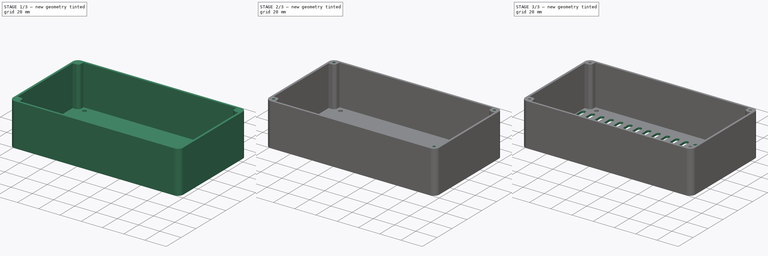
[diagram: build sequence overview — one tinted view per stage of 3, left to right]
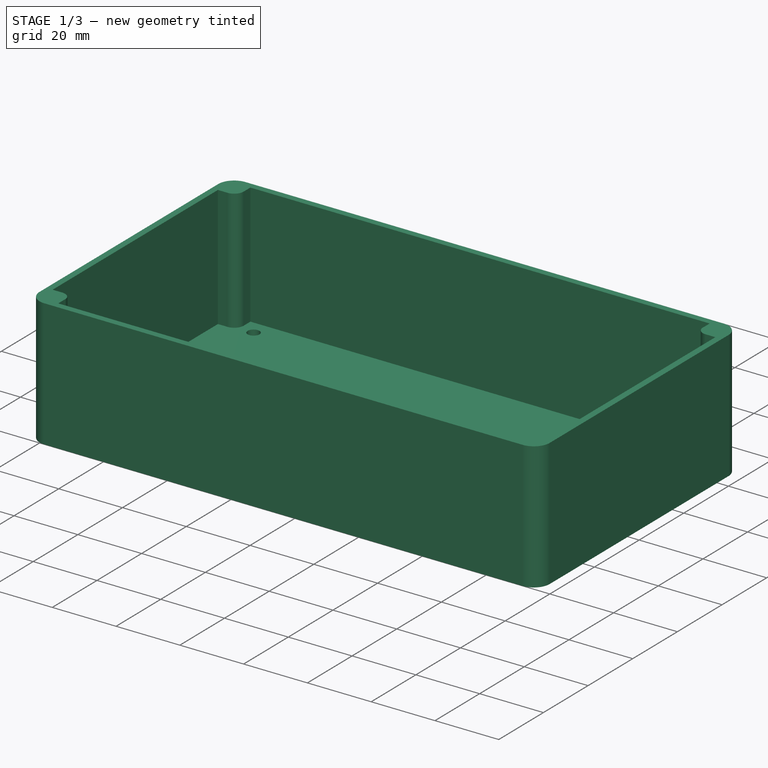
[diagram: stage 1 of 3 — iso view after this stage's code; geometry added in this stage tinted green]
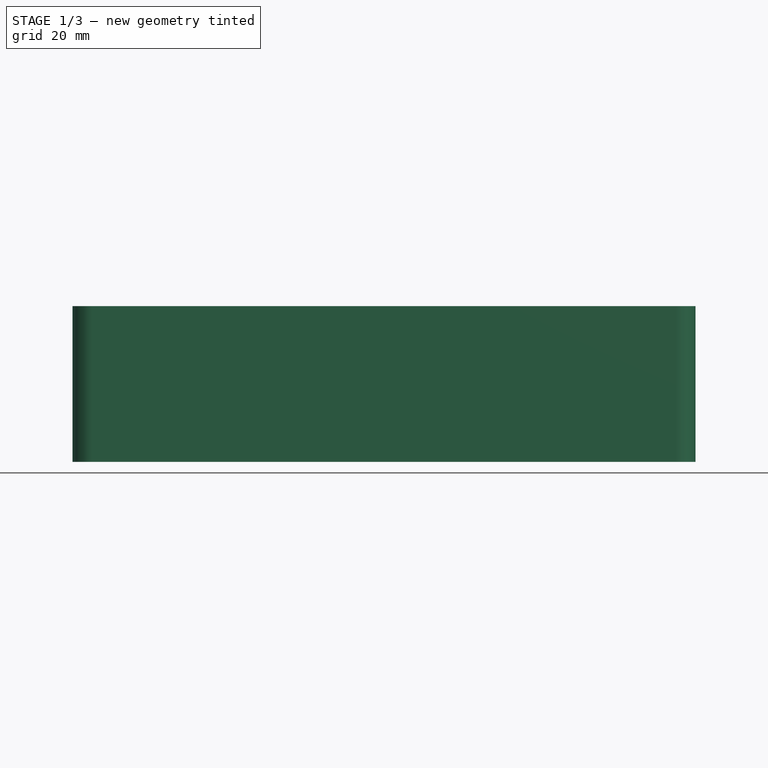
[diagram: stage 1 of 3 — front view after this stage's code; geometry added in this stage tinted green]
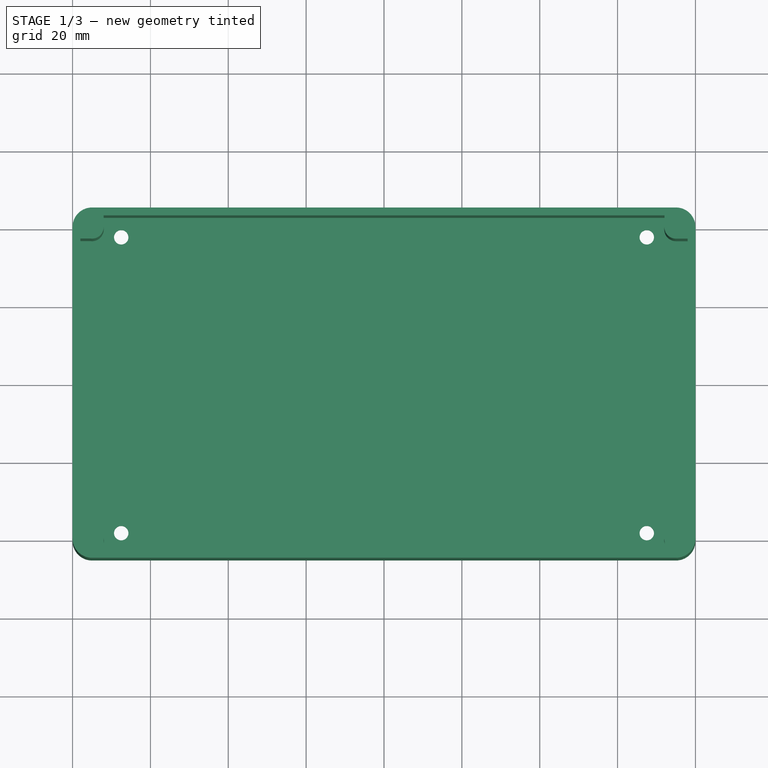
[diagram: stage 1 of 3 — top view after this stage's code; geometry added in this stage tinted green]
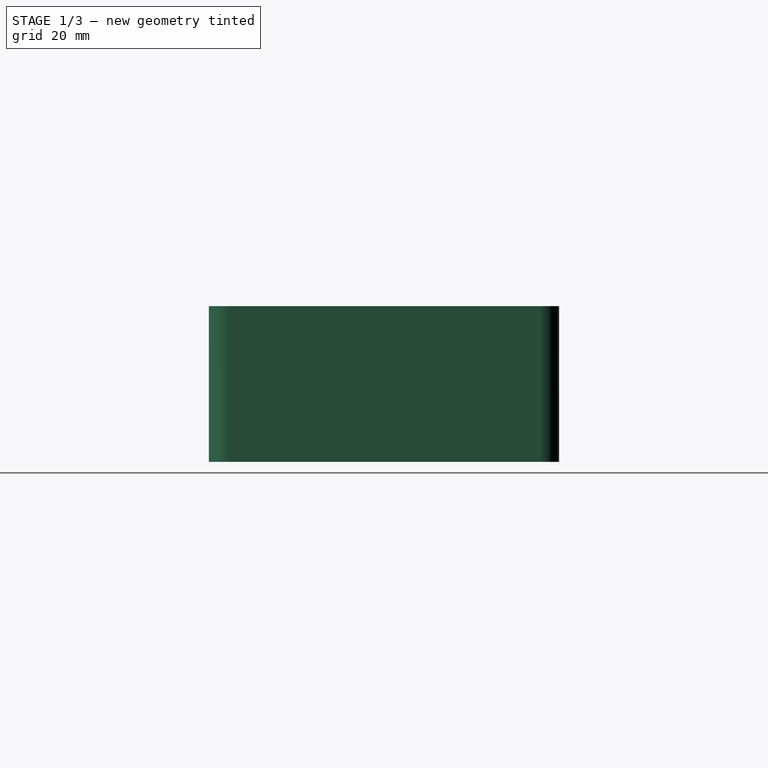
[diagram: stage 1 of 3 — right view after this stage's code; geometry added in this stage tinted green]
FCSTD DOCUMENT  (FreeCAD 0.17R13519 (Git))
Label: Corelia_0_electronics_case
License: All rights reserved
LicenseURL: http://en.wikipedia.org/wiki/All_rights_reserved
objects: Sketcher::SketchObject×4, PartDesign::Pocket×3, PartDesign::Pad×1, PartDesign::LinearPattern×1, PartDesign::Body×1
note: 14 computed .brp shape members not serialized (recipe doc carries the construction recipe); baked Part::Feature solids carry a one-line shape summary decoded from their .brp

FEATURE [Sketcher::SketchObject] Sketch
  MapMode = 5
  Support = -> [XY_Plane]
  sketch-geometry (16):
    g0: LineSegment StartX=-75 StartY=-45 StartZ=0 EndX=75 EndY=-45 EndZ=0
    g1: LineSegment StartX=80 StartY=-40 StartZ=0 EndX=80 EndY=40 EndZ=0
    g2: LineSegment StartX=75 StartY=45 StartZ=0 EndX=-75 EndY=45 EndZ=0
    g3: LineSegment StartX=-80 StartY=40 StartZ=0 EndX=-80 EndY=-40 EndZ=0
    g4: ArcOfCircle CenterX=-75 CenterY=40 CenterZ=0 NormalX=0 NormalY=0 NormalZ=1 AngleXU=0 Radius=5 StartAngle=1.5708 EndAngle=3.14159
    g5: ArcOfCircle CenterX=-75 CenterY=-40 CenterZ=0 NormalX=0 NormalY=0 NormalZ=1 AngleXU=0 Radius=5 StartAngle=3.14159 EndAngle=4.71239
    g6: ArcOfCircle CenterX=75 CenterY=-40 CenterZ=0 NormalX=0 NormalY=0 NormalZ=1 AngleXU=0 Radius=5 StartAngle=4.71239 EndAngle=6.28319
    g7: ArcOfCircle CenterX=75 CenterY=40 CenterZ=0 NormalX=0 NormalY=0 NormalZ=1 AngleXU=0 Radius=5 StartAngle=0 EndAngle=1.5708
    g8: LineSegment [constr] StartX=-67.5 StartY=38 StartZ=0 EndX=67.5 EndY=38 EndZ=0
    g9: LineSegment [constr] StartX=67.5 StartY=38 StartZ=0 EndX=67.5 EndY=-38 EndZ=0
    g10: LineSegment [constr] StartX=67.5 StartY=-38 StartZ=0 EndX=-67.5 EndY=-38 EndZ=0
    g11: LineSegment [constr] StartX=-67.5 StartY=-38 StartZ=0 EndX=-67.5 EndY=38 EndZ=0
    g12: Circle CenterX=-67.5 CenterY=38 CenterZ=0 NormalX=0 NormalY=0 NormalZ=1 AngleXU=0 Radius=1.85
    g13: Circle CenterX=-67.5 CenterY=-38 CenterZ=0 NormalX=0 NormalY=0 NormalZ=1 AngleXU=0 Radius=1.85
    g14: Circle CenterX=67.5 CenterY=-38 CenterZ=0 NormalX=0 NormalY=0 NormalZ=1 AngleXU=0 Radius=1.85
    g15: Circle CenterX=67.5 CenterY=38 CenterZ=0 NormalX=0 NormalY=0 NormalZ=1 AngleXU=0 Radius=1.85
  constraints (40):
    c: Horizontal(g0)
    c: Horizontal(g2)
    c: Vertical(g1)
    c: Vertical(g3)
    c: Tangent(g2,g4) = -1.5708
    c: Tangent(g3,g4) = -1.5708
    c: Tangent(g3,g5) = -1.5708
    c: Tangent(g0,g5) = -1.5708
    c: Tangent(g0,g6) = -1.5708
    c: Tangent(g1,g6) = -1.5708
    c: Tangent(g2,g7) = -1.5708
    c: Tangent(g1,g7) = -1.5708
    c: Equal(g4,g5)
    c: Equal(g5,g7)
    c: Equal(g7,g6)
    c: Radius(g5) = 5
    c: DistanceX(g3,g1) = 160
    c: DistanceY(g0,g2) = 90
    c: Symmetric(g3,g3,g-1)
    c: Symmetric(g2,g2,g-2)
    c: Coincident(g8,g9)
    c: Coincident(g9,g10)
    c: Coincident(g10,g11)
    c: Coincident(g11,g8)
    c: Horizontal(g8)
    c: Horizontal(g10)
    c: Vertical(g9)
    c: Vertical(g11)
    c: Symmetric(g8,g8,g-2)
    c: Symmetric(g8,g10,g-1)
    c: DistanceX(g8,g8) = 135
    c: DistanceY(g11,g11) = 76
    c: Coincident(g12,g8)
    c: Coincident(g13,g10)
    c: Coincident(g14,g9)
    c: Coincident(g15,g8)
    c: Equal(g13,g12)
    c: Equal(g12,g15)
    c: Equal(g15,g14)
    c: Radius(g12) = 1.85
FEATURE [PartDesign::Pad] Pad
  Length = 40
  Length2 = 100
  Midplane = true
  Profile = -> Sketch
  Type = 0
FEATURE [Sketcher::SketchObject] Sketch001
  MapMode = 5
  Placement = pos=(0,0,20) rot=(0,0,1;0rad)
  Support = -> [Pad]
  sketch-geometry (16):
    g0: ArcOfCircle CenterX=-75 CenterY=40 CenterZ=0 NormalX=0 NormalY=0 NormalZ=1 AngleXU=0 Radius=3 StartAngle=4.60498 EndAngle=6.33899
    g1: ArcOfCircle CenterX=-75 CenterY=-40 CenterZ=0 NormalX=0 NormalY=0 NormalZ=1 AngleXU=0 Radius=3 StartAngle=6.12101 EndAngle=7.88614
    g2: ArcOfCircle CenterX=75 CenterY=40 CenterZ=0 NormalX=0 NormalY=0 NormalZ=1 AngleXU=0 Radius=3 StartAngle=2.97206 EndAngle=4.71239
    g3: ArcOfCircle CenterX=75 CenterY=-40 CenterZ=0 NormalX=0 NormalY=0 NormalZ=1 AngleXU=0 Radius=3 StartAngle=1.5708 EndAngle=3.38596
    g4: LineSegment StartX=-72.0047 StartY=42.9871 StartZ=0 EndX=72.043 EndY=42.9871 EndZ=0
    g5: LineSegment StartX=77.9996 StartY=37 StartZ=0 EndX=77.9996 EndY=-37 EndZ=0
    g6: LineSegment StartX=-72.0394 StartY=-42.9804 StartZ=0 EndX=72.0891 EndY=-42.9804 EndZ=0
    g7: LineSegment StartX=-78 StartY=-37.0016 StartZ=0 EndX=-78 EndY=37.0173 EndZ=0
    g8: LineSegment StartX=-75.3216 StartY=37.0173 StartZ=0 EndX=-78 EndY=37.0173 EndZ=0
    g9: LineSegment StartX=72.043 StartY=40.5062 StartZ=0 EndX=72.043 EndY=42.9871 EndZ=0
    g10: LineSegment StartX=75 StartY=37 StartZ=0 EndX=77.9996 EndY=37 EndZ=0
    g11: LineSegment StartX=75 StartY=-37 StartZ=0 EndX=77.9996 EndY=-37 EndZ=0
    g12: LineSegment StartX=72.0891 StartY=-40.7258 StartZ=0 EndX=72.0891 EndY=-42.9804 EndZ=0
    g13: LineSegment StartX=-75.0965 StartY=-37.0016 StartZ=0 EndX=-78 EndY=-37.0016 EndZ=0
    g14: LineSegment StartX=-72.0394 StartY=-40.4844 StartZ=0 EndX=-72.0394 EndY=-42.9804 EndZ=0
    g15: LineSegment StartX=-72.0047 StartY=40.1673 StartZ=0 EndX=-72.0047 EndY=42.9871 EndZ=0
  constraints (40):
    c: DistanceX(g1) = -75
    c: DistanceY(g1) = -40
    c: Symmetric(g1,g0,g-1)
    c: Symmetric(g1,g3,g-2)
    c: Symmetric(g0,g2,g-2)
    c: Equal(g0,g1)
    c: Equal(g1,g3)
    c: Equal(g3,g2)
    c: Radius(g0) = 3
    c: Horizontal(g4)
    c: Vertical(g5)
    c: Horizontal(g6)
    c: Vertical(g7)
    c: Tangent(g7,g0)
    c: Horizontal(g8)
    c: Vertical(g9)
    c: Tangent(g10,g2)
    c: Horizontal(g10)
    c: Horizontal(g11)
    c: Tangent(g11,g3)
    c: Vertical(g12)
    c: Horizontal(g13)
    c: Vertical(g14)
    c: Vertical(g15)
    c: Coincident(g0,g15)
    c: Coincident(g4,g15)
    c: Coincident(g0,g8)
    c: Coincident(g7,g8)
    c: Coincident(g1,g13)
    c: Coincident(g7,g13)
    c: Coincident(g1,g14)
    c: Coincident(g6,g14)
    c: Coincident(g6,g12)
    c: Coincident(g3,g12)
    c: Coincident(g5,g11)
    c: Coincident(g3,g11)
    c: Coincident(g4,g9)
    c: Coincident(g5,g10)
    c: Coincident(g2,g9)
    c: Coincident(g2,g10)
FEATURE [PartDesign::Pocket] Pocket
  BaseFeature = -> Pad
  Length = 38
  Length2 = 100
  Profile = -> Sketch001
  Type = 0
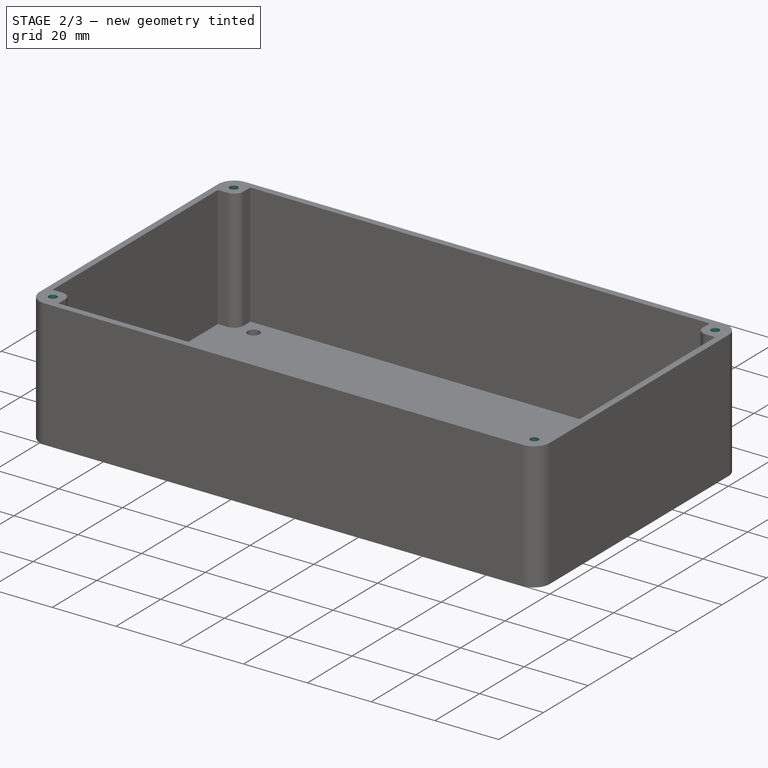
[diagram: stage 2 of 3 — iso view after this stage's code; geometry added in this stage tinted green]
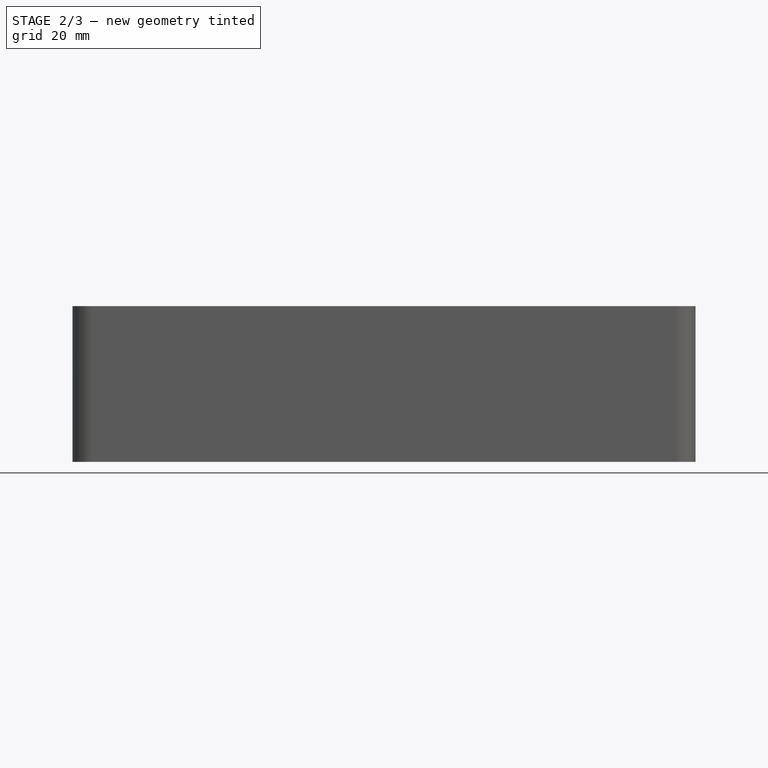
[diagram: stage 2 of 3 — front view after this stage's code; geometry added in this stage tinted green]
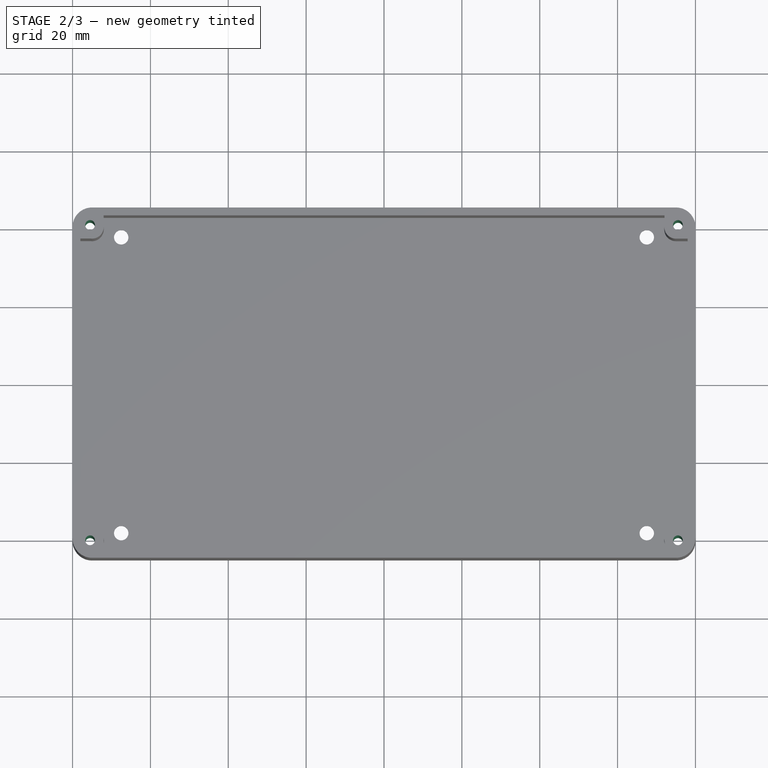
[diagram: stage 2 of 3 — top view after this stage's code; geometry added in this stage tinted green]
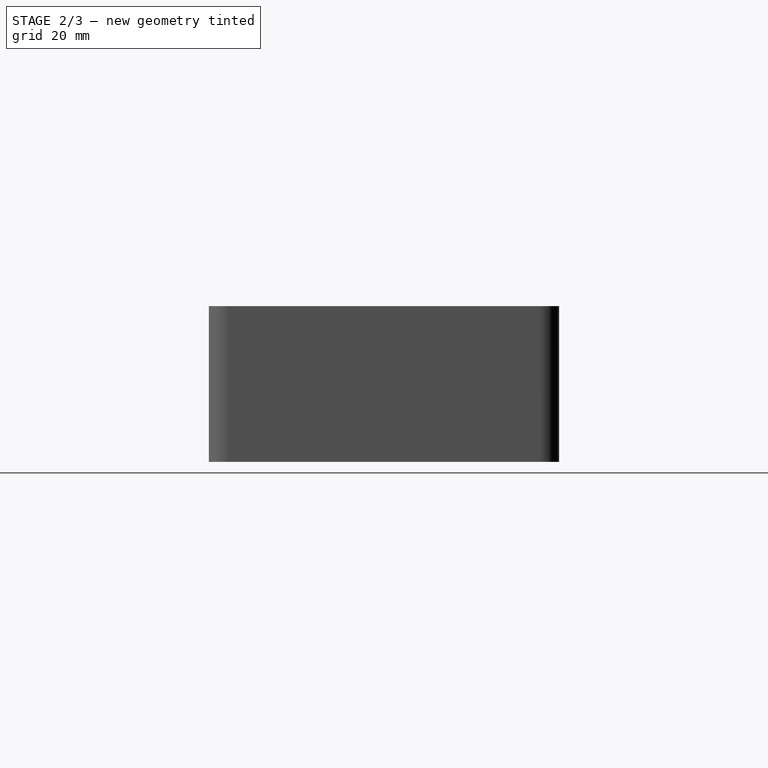
[diagram: stage 2 of 3 — right view after this stage's code; geometry added in this stage tinted green]
FEATURE [Sketcher::SketchObject] Sketch002
  MapMode = 5
  Placement = pos=(0,0,20) rot=(0,0,1;0rad)
  Support = -> [Pocket]
  sketch-geometry (8):
    g0: Circle CenterX=-75.5 CenterY=40.5 CenterZ=0 NormalX=0 NormalY=0 NormalZ=1 AngleXU=0 Radius=1.25
    g1: Circle CenterX=-75.5 CenterY=-40.5 CenterZ=0 NormalX=0 NormalY=0 NormalZ=1 AngleXU=0 Radius=1.25
    g2: Circle CenterX=75.5 CenterY=40.5 CenterZ=0 NormalX=0 NormalY=0 NormalZ=1 AngleXU=0 Radius=1.25
    g3: Circle CenterX=75.5 CenterY=-40.5 CenterZ=0 NormalX=0 NormalY=0 NormalZ=1 AngleXU=0 Radius=1.25
    g4: LineSegment [constr] StartX=-75.5 StartY=40.5 StartZ=0 EndX=-75.5 EndY=-40.5 EndZ=0
    g5: LineSegment [constr] StartX=-75.5 StartY=-40.5 StartZ=0 EndX=75.5 EndY=-40.5 EndZ=0
    g6: LineSegment [constr] StartX=75.5 StartY=-40.5 StartZ=0 EndX=75.5 EndY=40.5 EndZ=0
    g7: LineSegment [constr] StartX=75.5 StartY=40.5 StartZ=0 EndX=-75.5 EndY=40.5 EndZ=0
  constraints (20):
    c: Coincident(g4,g0)
    c: Coincident(g4,g1)
    c: Vertical(g4)
    c: Coincident(g4,g5)
    c: Coincident(g5,g3)
    c: Horizontal(g5)
    c: Coincident(g5,g6)
    c: Coincident(g6,g2)
    c: Vertical(g6)
    c: Coincident(g6,g7)
    c: Coincident(g7,g4)
    c: Horizontal(g7)
    c: Symmetric(g0,g1,g-1)
    c: Symmetric(g0,g2,g-2)
    c: Equal(g0,g1)
    c: Equal(g1,g3)
    c: Equal(g3,g2)
    c: Radius(g0) = 1.25
    c: DistanceX(g7,g7) = 151
    c: DistanceY(g4,g4) = 81
FEATURE [PartDesign::Pocket] Pocket001
  BaseFeature = -> Pocket
  Length = 5
  Length2 = 100
  Profile = -> Sketch002
  Type = 1
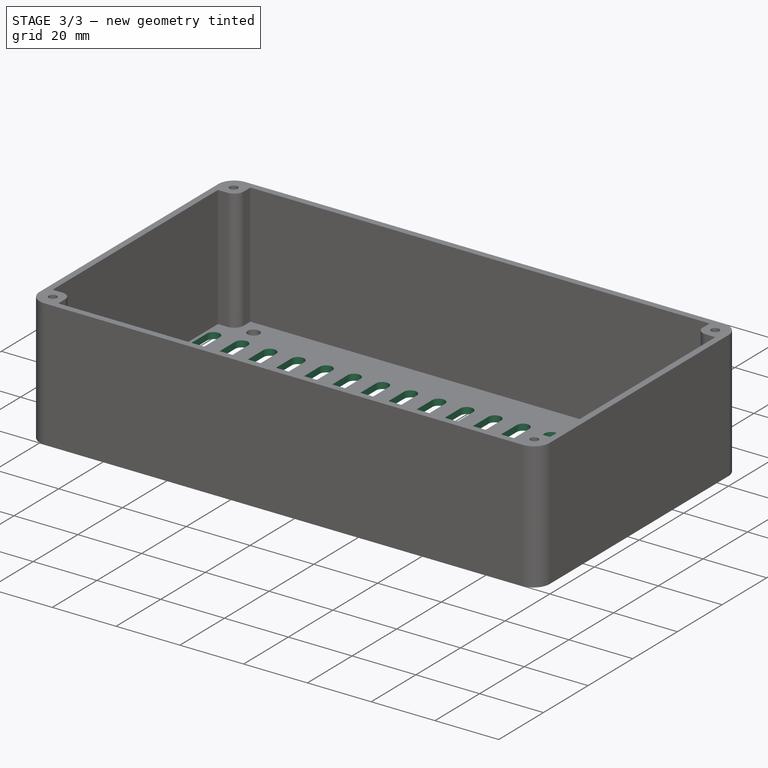
[diagram: stage 3 of 3 — iso view after this stage's code; geometry added in this stage tinted green]
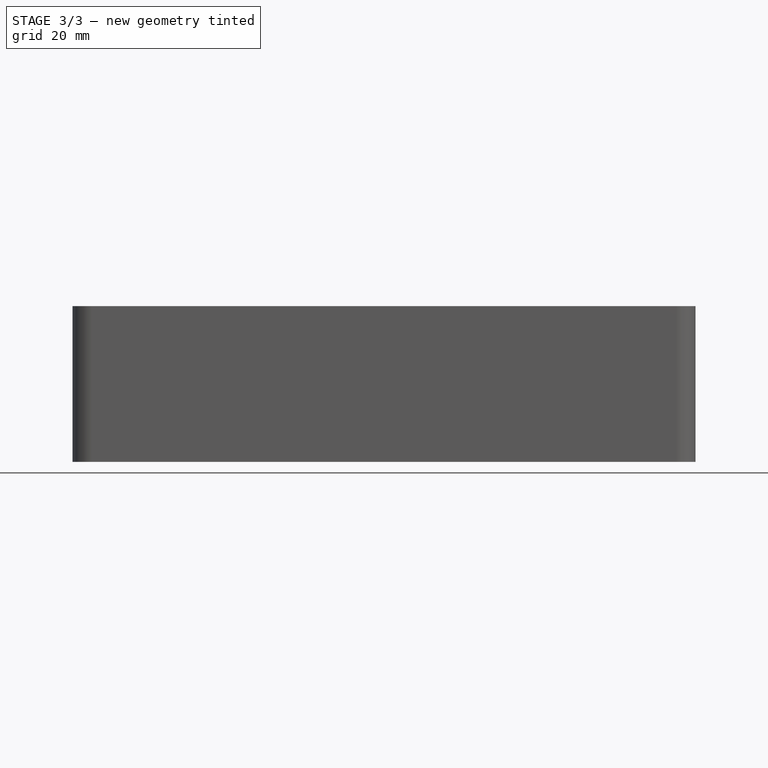
[diagram: stage 3 of 3 — front view after this stage's code; geometry added in this stage tinted green]
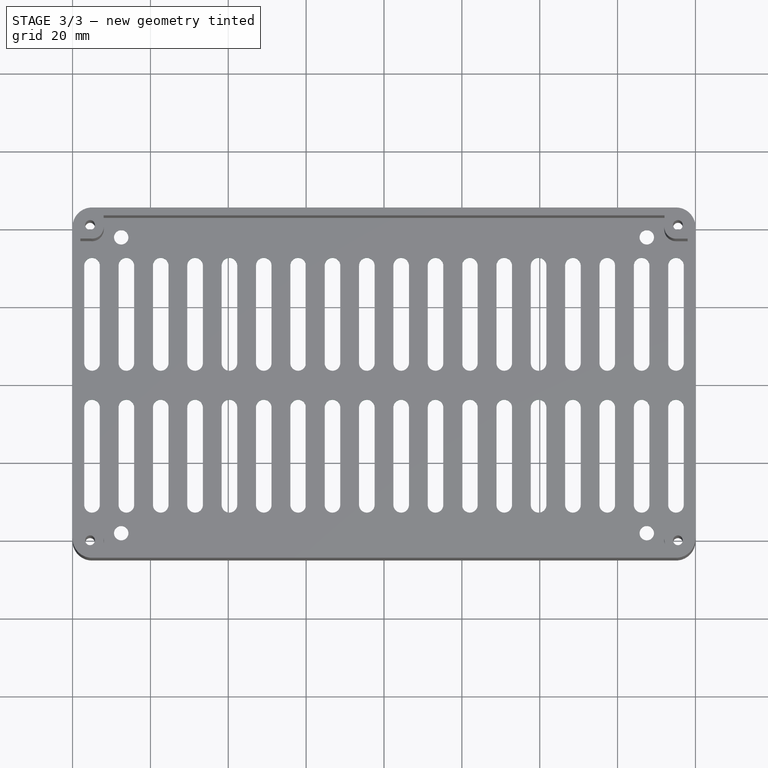
[diagram: stage 3 of 3 — top view after this stage's code; geometry added in this stage tinted green]
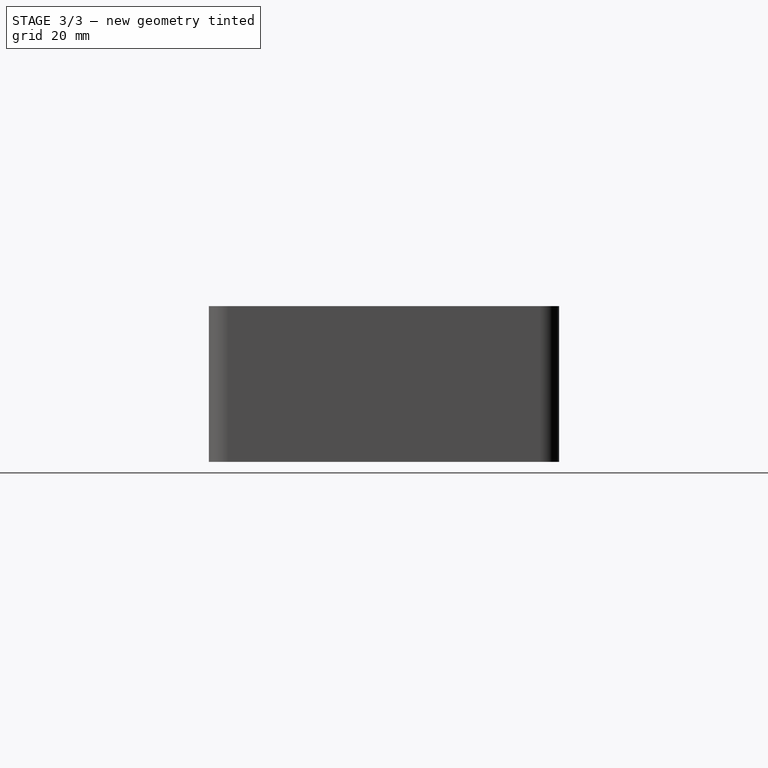
[diagram: stage 3 of 3 — right view after this stage's code; geometry added in this stage tinted green]
FEATURE [Sketcher::SketchObject] Sketch003
  MapMode = 5
  Placement = pos=(0,0,-18) rot=(0,0,1;0rad)
  Support = -> [Pocket001]
  sketch-geometry (8):
    g0: ArcOfCircle CenterX=-75 CenterY=30.7242 CenterZ=0 NormalX=0 NormalY=0 NormalZ=1 AngleXU=0 Radius=2 StartAngle=0 EndAngle=3.14159
    g1: ArcOfCircle CenterX=-75 CenterY=5.72418 CenterZ=0 NormalX=0 NormalY=0 NormalZ=1 AngleXU=0 Radius=2 StartAngle=3.14159 EndAngle=6.28319
    g2: LineSegment StartX=-77 StartY=30.7242 StartZ=0 EndX=-77 EndY=5.72418 EndZ=0
    g3: LineSegment StartX=-73 StartY=30.7242 StartZ=0 EndX=-73 EndY=5.72418 EndZ=0
    g4: ArcOfCircle CenterX=-75 CenterY=-5.72418 CenterZ=0 NormalX=0 NormalY=0 NormalZ=1 AngleXU=0 Radius=2 StartAngle=0 EndAngle=3.14159
    g5: ArcOfCircle CenterX=-75 CenterY=-30.7242 CenterZ=0 NormalX=0 NormalY=0 NormalZ=1 AngleXU=0 Radius=2 StartAngle=3.14159 EndAngle=6.28319
    g6: LineSegment StartX=-77 StartY=-5.72418 StartZ=0 EndX=-77 EndY=-30.7242 EndZ=0
    g7: LineSegment StartX=-73 StartY=-5.72418 StartZ=0 EndX=-73 EndY=-30.7242 EndZ=0
  constraints (19):
    c: Tangent(g0,g3) = 1.5708
    c: Tangent(g0,g2) = -1.5708
    c: Tangent(g2,g1) = -1.5708
    c: Tangent(g3,g1) = 1.5708
    c: Vertical(g2)
    c: Equal(g0,g1)
    c: Tangent(g4,g7) = 1.5708
    c: Tangent(g4,g6) = -1.5708
    c: Tangent(g6,g5) = -1.5708
    c: Tangent(g7,g5) = 1.5708
    c: Vertical(g6)
    c: Equal(g4,g5)
    c: Equal(g1,g4)
    c: Equal(g7,g3)
    c: Symmetric(g4,g1,g-1)
    c: DistanceX(g5) = -75
    c: DistanceY(g5) = -30.7242
    c: Radius(g1) = 2
    c: DistanceY(g6,g6) = 25
FEATURE [PartDesign::Pocket] Pocket002
  BaseFeature = -> Pocket001
  Length = 5
  Length2 = 100
  Profile = -> Sketch003
  Type = 1
FEATURE [PartDesign::LinearPattern] LinearPattern
  BaseFeature = -> Pocket002
  Direction = -> Sketch003 [H_Axis]
  Length = 150
  Occurrences = 18
  Originals = -> [Pocket002]
FEATURE [PartDesign::Body] Body
  Group = -> [Sketch,Pad,Sketch001,Pocket,Sketch002,Pocket001,Sketch003,Pocket002,LinearPattern]
  Origin = -> Origin
  Tip = -> LinearPattern
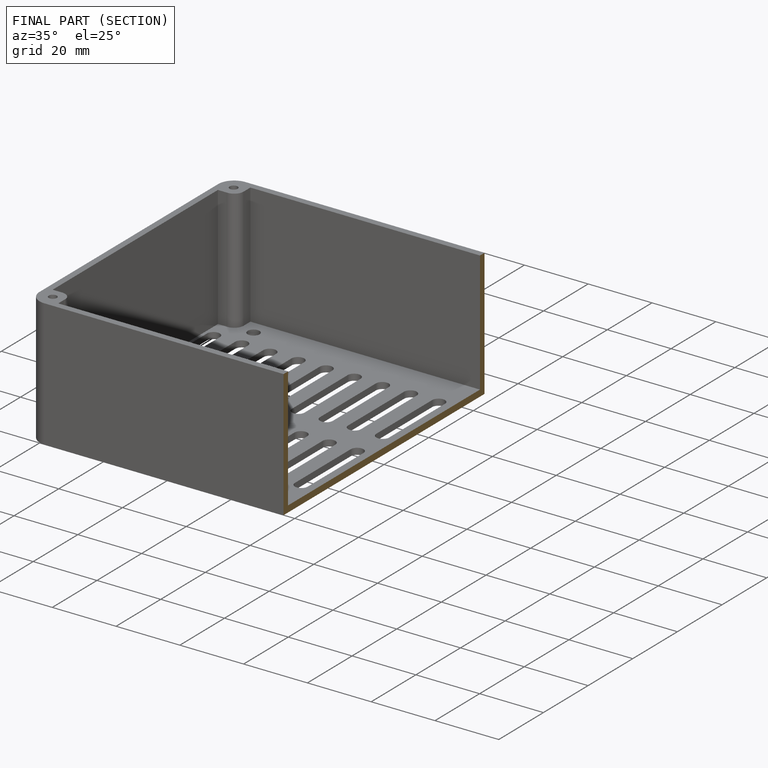
[diagram: finished part — half-section view (interior)]
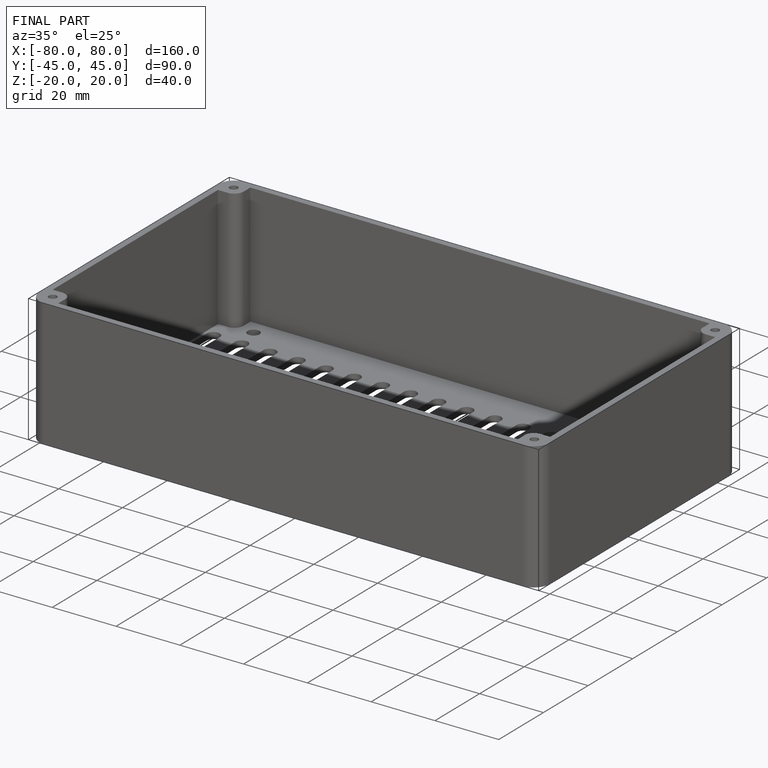
[diagram: finished part — iso view with bounding-box wireframe]
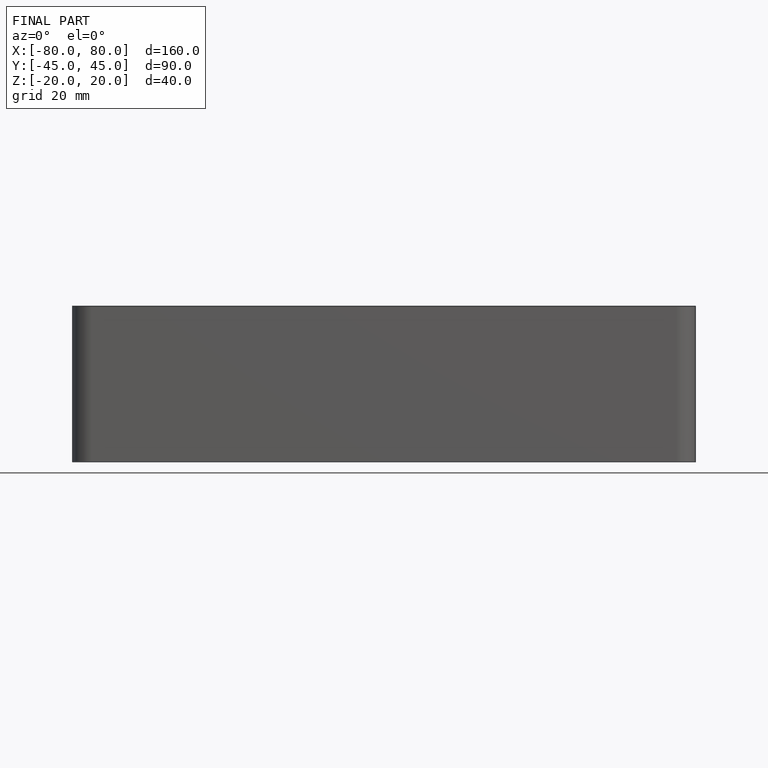
[diagram: finished part — front view with bounding-box wireframe]
